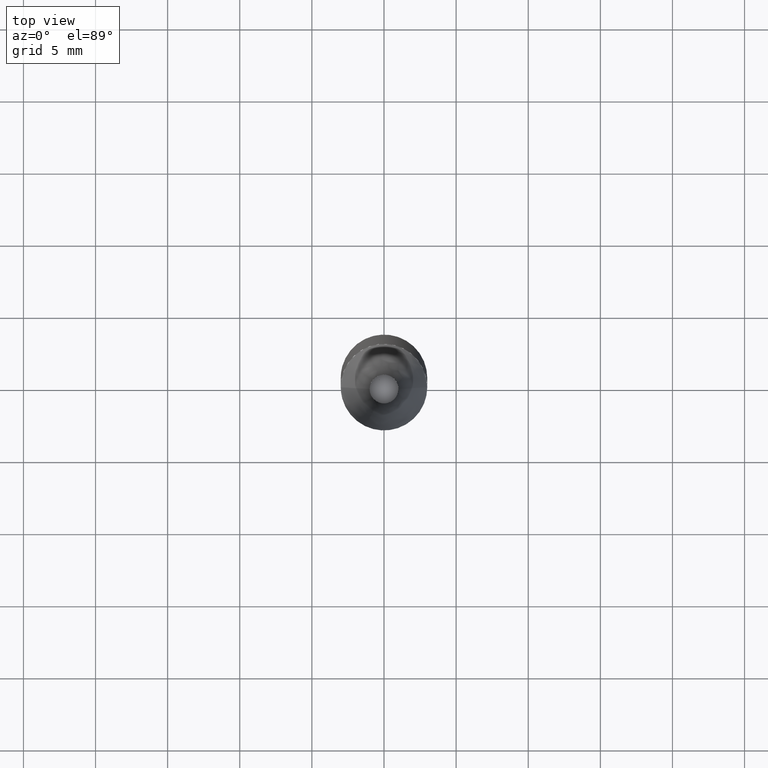
[diagram: clean part render]
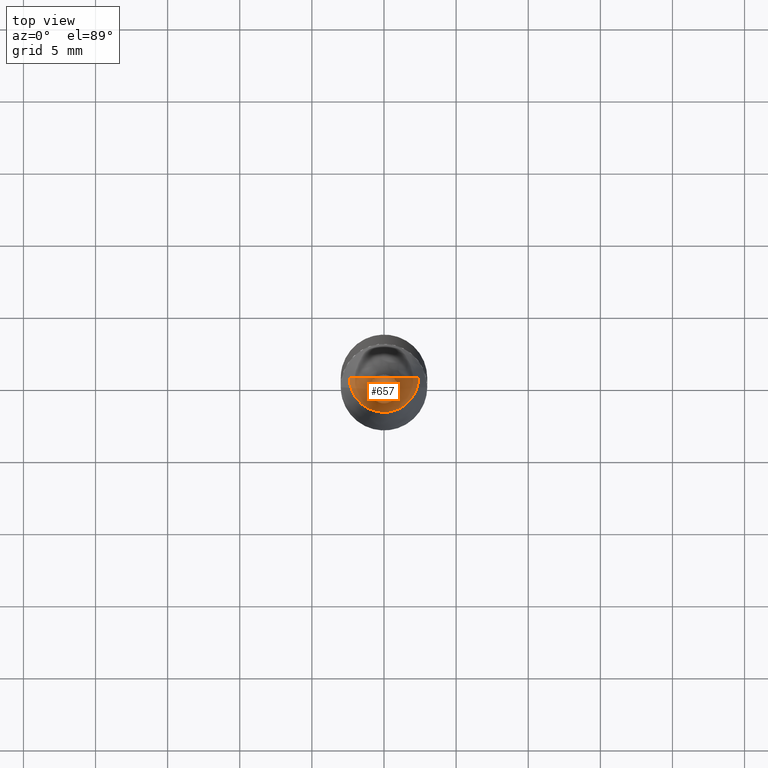
[diagram: same view with one face highlighted and labeled with its STEP entity id]
A machine part, top view. The second image highlights one B-rep face of the part: STEP entity #657.
In plain terms, the highlighted face is a freeform B-spline surface patch.
Its self-contained STEP definition (entity closure, byte-faithful):
#303=CARTESIAN_POINT('',(2.4,0.0,37.535));
#307=CARTESIAN_POINT('',(-2.4,0.0,37.535));
#308=CARTESIAN_POINT('',(0.0,0.0,37.535));
#318=CARTESIAN_POINT('',(-2.4,-2.4,37.535));
#319=CARTESIAN_POINT('',(0.0,-2.4,37.535));
#320=CARTESIAN_POINT('',(2.4,-2.4,37.535));
#642=(
BOUNDED_SURFACE()
B_SPLINE_SURFACE(1,2,(
(#307,#318,#319,#320,#303),
(#308,#308,#308,#308,#308)
), .UNSPECIFIED.,.F.,.F.,.F.)
B_SPLINE_SURFACE_WITH_KNOTS((2,2),(3,2,3),(
0.0,1.0),(
0.0,0.5,1.0), .UNSPECIFIED.)
GEOMETRIC_REPRESENTATION_ITEM()
RATIONAL_B_SPLINE_SURFACE(((1.0,0.707106781187,1.0,0.707106781187,1.0),
(1.0,0.707106781187,1.0,0.707106781187,1.0)
))
REPRESENTATION_ITEM('')
SURFACE()
);
#643=(
BOUNDED_CURVE()
B_SPLINE_CURVE(1,(#308,#303),.UNSPECIFIED.,.F.,.F.)
B_SPLINE_CURVE_WITH_KNOTS((2,2),
(0.0,1.0),.UNSPECIFIED.)
CURVE()
GEOMETRIC_REPRESENTATION_ITEM()
RATIONAL_B_SPLINE_CURVE((1.0,1.0))
REPRESENTATION_ITEM('')
);
#644=(
BOUNDED_CURVE()
B_SPLINE_CURVE(2,(#303,#320,#319,#318,#307),.UNSPECIFIED.,.F.,.F.)
B_SPLINE_CURVE_WITH_KNOTS((3,2,3),
(0.0,0.5,1.0),.UNSPECIFIED.)
CURVE()
GEOMETRIC_REPRESENTATION_ITEM()
RATIONAL_B_SPLINE_CURVE((1.0,0.707106781187,1.0,0.707106781187,1.0))
REPRESENTATION_ITEM('')
);
#645=(
BOUNDED_CURVE()
B_SPLINE_CURVE(1,(#307,#308),.UNSPECIFIED.,.F.,.F.)
B_SPLINE_CURVE_WITH_KNOTS((2,2),
(0.0,1.0),.UNSPECIFIED.)
CURVE()
GEOMETRIC_REPRESENTATION_ITEM()
RATIONAL_B_SPLINE_CURVE((1.0,1.0))
REPRESENTATION_ITEM('')
);
#646=VERTEX_POINT('',#303);
#647=VERTEX_POINT('',#307);
#648=VERTEX_POINT('',#308);
#649=EDGE_CURVE('',#648,#646,#643,.T.);
#650=EDGE_CURVE('',#646,#647,#644,.T.);
#651=EDGE_CURVE('',#647,#648,#645,.T.);
#652=ORIENTED_EDGE('',*,*,#649,.T.);
#653=ORIENTED_EDGE('',*,*,#650,.T.);
#654=ORIENTED_EDGE('',*,*,#651,.T.);
#655=EDGE_LOOP('',(#652,#653,#654));
#656=FACE_OUTER_BOUND('',#655,.T.);
#657=ADVANCED_FACE('',(#656),#642,.T.);